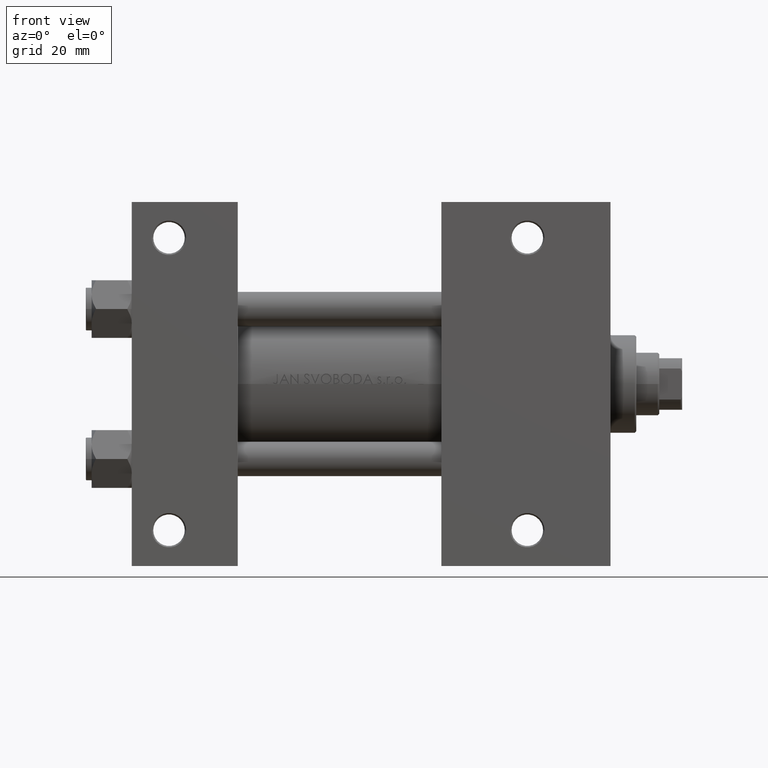
[diagram: clean part render]
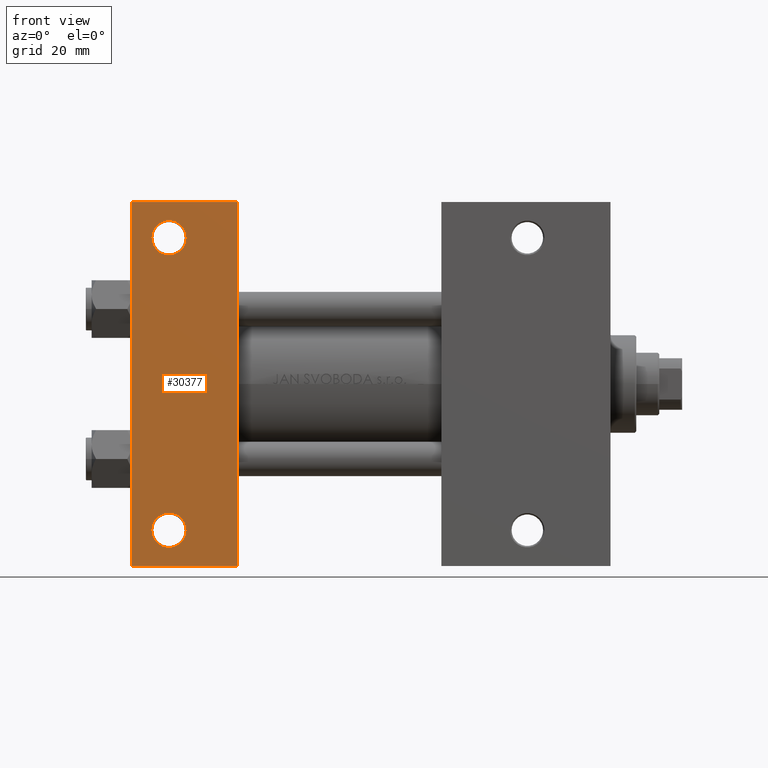
[diagram: same view with one face highlighted and labeled with its STEP entity id]
A machine part, front view. The second image highlights one B-rep face of the part: STEP entity #30377.
In plain terms, the highlighted planar face has unit normal (0, -1, -0).
Its self-contained STEP definition (entity closure, byte-faithful):
#390 = DIRECTION ( 'NONE',  ( -0.000000000000000000, -9.251858538542972814E-17, 1.000000000000000000 ) ) ;
#975 = ORIENTED_EDGE ( 'NONE', *, *, #26981, .T. ) ;
#2611 = CARTESIAN_POINT ( 'NONE',  ( 1.595073532467135441E-14, 63.50000000000000000, -37.50000000000002132 ) ) ;
#3490 = CARTESIAN_POINT ( 'NONE',  ( 3.977209754999747208E-16, -63.50000000000000000, -37.49999999999999289 ) ) ;
#4514 = CIRCLE ( 'NONE', #10863, 5.999499999999990507 ) ;
#4605 = AXIS2_PLACEMENT_3D ( 'NONE', #30571, #45267, #30824 ) ;
#6748 = DIRECTION ( 'NONE',  ( 0.000000000000000000, 1.000000000000000000, 9.251858538542972814E-17 ) ) ;
#8576 = CARTESIAN_POINT ( 'NONE',  ( 37.00000000000000000, -63.50000000000000000, -37.49999999999999289 ) ) ;
#9852 = DIRECTION ( 'NONE',  ( 1.000000000000000000, 0.000000000000000000, 0.000000000000000000 ) ) ;
#10093 = LINE ( 'NONE', #2611, #46623 ) ;
#10478 = PLANE ( 'NONE',  #20125 ) ;
#10863 = AXIS2_PLACEMENT_3D ( 'NONE', #17797, #36241, #17077 ) ;
#10938 = ORIENTED_EDGE ( 'NONE', *, *, #49041, .F. ) ;
#12021 = CARTESIAN_POINT ( 'NONE',  ( 0.000000000000000000, 37.49999999999999289, -37.50000000000000000 ) ) ;
#12587 = CARTESIAN_POINT ( 'NONE',  ( 37.00000000000001421, 63.50000000000000000, -37.50000000000002132 ) ) ;
#13367 = EDGE_CURVE ( 'NONE', #20430, #37706, #47518, .T. ) ;
#13484 = FACE_OUTER_BOUND ( 'NONE', #33364, .T. ) ;
#13627 = DIRECTION ( 'NONE',  ( -1.000000000000000000, -0.000000000000000000, -0.000000000000000000 ) ) ;
#14364 = CARTESIAN_POINT ( 'NONE',  ( 7.000500000000034362, 50.99999999999999289, -37.50000000000000000 ) ) ;
#17077 = DIRECTION ( 'NONE',  ( 0.000000000000000000, 1.000000000000000000, 0.000000000000000000 ) ) ;
#17124 = CARTESIAN_POINT ( 'NONE',  ( 1.595073532467135441E-14, 63.50000000000000000, -37.50000000000002132 ) ) ;
#17797 = CARTESIAN_POINT ( 'NONE',  ( 12.99999999999999822, -51.00000000000001421, -37.50000000000000711 ) ) ;
#17867 = ORIENTED_EDGE ( 'NONE', *, *, #31856, .T. ) ;
#18094 = LINE ( 'NONE', #25351, #46351 ) ;
#18100 = EDGE_LOOP ( 'NONE', ( #17867, #36651 ) ) ;
#18546 = AXIS2_PLACEMENT_3D ( 'NONE', #41250, #390, #41991 ) ;
#18994 = CARTESIAN_POINT ( 'NONE',  ( 37.00000000000000000, 37.49999999999999289, -37.50000000000000000 ) ) ;
#19359 = CIRCLE ( 'NONE', #18546, 5.999499999999962974 ) ;
#20125 = AXIS2_PLACEMENT_3D ( 'NONE', #25688, #40859, #6748 ) ;
#20147 = ORIENTED_EDGE ( 'NONE', *, *, #30142, .T. ) ;
#20430 = VERTEX_POINT ( 'NONE', #23409 ) ;
#22173 = VERTEX_POINT ( 'NONE', #41351 ) ;
#22382 = VERTEX_POINT ( 'NONE', #3490 ) ;
#23103 = CARTESIAN_POINT ( 'NONE',  ( 12.99999999999999822, -51.00000000000001421, -37.50000000000000711 ) ) ;
#23348 = DIRECTION ( 'NONE',  ( -0.000000000000000000, -9.251858538542972814E-17, 1.000000000000000000 ) ) ;
#23409 = CARTESIAN_POINT ( 'NONE',  ( 18.99949999999996209, 50.99999999999999289, -37.50000000000000000 ) ) ;
#24734 = ORIENTED_EDGE ( 'NONE', *, *, #28634, .T. ) ;
#25351 = CARTESIAN_POINT ( 'NONE',  ( 3.977209754999747208E-16, -63.50000000000000000, -37.49999999999999289 ) ) ;
#25688 = CARTESIAN_POINT ( 'NONE',  ( 37.00000000000000000, 37.49999999999999289, -37.50000000000000000 ) ) ;
#26981 = EDGE_CURVE ( 'NONE', #39142, #22382, #18094, .T. ) ;
#27221 = DIRECTION ( 'NONE',  ( 0.000000000000000000, -1.000000000000000000, -9.251858538542972814E-17 ) ) ;
#28329 = ORIENTED_EDGE ( 'NONE', *, *, #38900, .T. ) ;
#28634 = EDGE_CURVE ( 'NONE', #43605, #22173, #44004, .T. ) ;
#29414 = FACE_BOUND ( 'NONE', #41205, .T. ) ;
#29709 = AXIS2_PLACEMENT_3D ( 'NONE', #23103, #23348, #45740 ) ;
#30142 = EDGE_CURVE ( 'NONE', #33654, #39142, #38163, .T. ) ;
#30377 = ADVANCED_FACE ( 'NONE', ( #48076, #29414, #13484 ), #10478, .T. ) ;
#30571 = CARTESIAN_POINT ( 'NONE',  ( 12.99999999999999822, 50.99999999999999289, -37.50000000000000000 ) ) ;
#30824 = DIRECTION ( 'NONE',  ( 0.000000000000000000, 1.000000000000000000, 0.000000000000000000 ) ) ;
#31856 = EDGE_CURVE ( 'NONE', #37706, #20430, #19359, .T. ) ;
#33364 = EDGE_LOOP ( 'NONE', ( #10938, #43472, #20147, #975 ) ) ;
#33654 = VERTEX_POINT ( 'NONE', #12587 ) ;
#36241 = DIRECTION ( 'NONE',  ( -0.000000000000000000, -9.251858538542972814E-17, 1.000000000000000000 ) ) ;
#36651 = ORIENTED_EDGE ( 'NONE', *, *, #13367, .T. ) ;
#37665 = VERTEX_POINT ( 'NONE', #17124 ) ;
#37706 = VERTEX_POINT ( 'NONE', #14364 ) ;
#38163 = LINE ( 'NONE', #18994, #41576 ) ;
#38889 = EDGE_CURVE ( 'NONE', #37665, #33654, #10093, .T. ) ;
#38900 = EDGE_CURVE ( 'NONE', #22173, #43605, #4514, .T. ) ;
#39142 = VERTEX_POINT ( 'NONE', #8576 ) ;
#40859 = DIRECTION ( 'NONE',  ( 0.000000000000000000, 9.251858538542972814E-17, -1.000000000000000000 ) ) ;
#41205 = EDGE_LOOP ( 'NONE', ( #24734, #28329 ) ) ;
#41250 = CARTESIAN_POINT ( 'NONE',  ( 12.99999999999999822, 50.99999999999999289, -37.50000000000000000 ) ) ;
#41280 = VECTOR ( 'NONE', #27221, 1000.000000000000000 ) ;
#41351 = CARTESIAN_POINT ( 'NONE',  ( 18.99949999999998695, -51.00000000000001421, -37.50000000000000711 ) ) ;
#41576 = VECTOR ( 'NONE', #45873, 1000.000000000000000 ) ;
#41991 = DIRECTION ( 'NONE',  ( 0.000000000000000000, 1.000000000000000000, 0.000000000000000000 ) ) ;
#43472 = ORIENTED_EDGE ( 'NONE', *, *, #38889, .T. ) ;
#43605 = VERTEX_POINT ( 'NONE', #44081 ) ;
#44004 = CIRCLE ( 'NONE', #29709, 5.999499999999990507 ) ;
#44081 = CARTESIAN_POINT ( 'NONE',  ( 7.000500000000006828, -51.00000000000001421, -37.50000000000000711 ) ) ;
#45267 = DIRECTION ( 'NONE',  ( -0.000000000000000000, -9.251858538542972814E-17, 1.000000000000000000 ) ) ;
#45740 = DIRECTION ( 'NONE',  ( 0.000000000000000000, 1.000000000000000000, 0.000000000000000000 ) ) ;
#45873 = DIRECTION ( 'NONE',  ( 0.000000000000000000, -1.000000000000000000, -9.251858538542972814E-17 ) ) ;
#46131 = LINE ( 'NONE', #12021, #41280 ) ;
#46351 = VECTOR ( 'NONE', #13627, 1000.000000000000000 ) ;
#46623 = VECTOR ( 'NONE', #9852, 1000.000000000000000 ) ;
#47518 = CIRCLE ( 'NONE', #4605, 5.999499999999962974 ) ;
#48076 = FACE_BOUND ( 'NONE', #18100, .T. ) ;
#49041 = EDGE_CURVE ( 'NONE', #37665, #22382, #46131, .T. ) ;